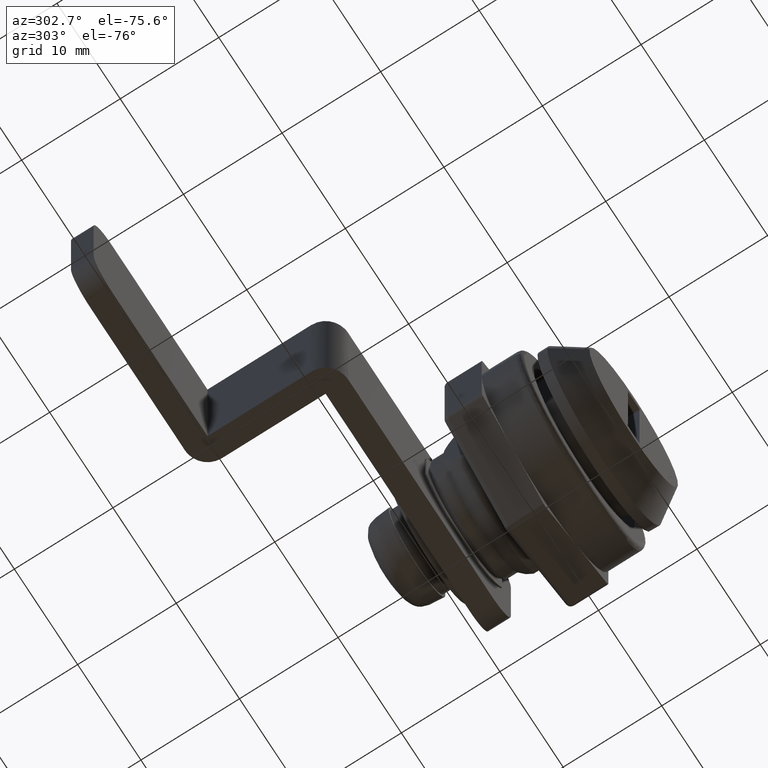
[diagram: clean part render]
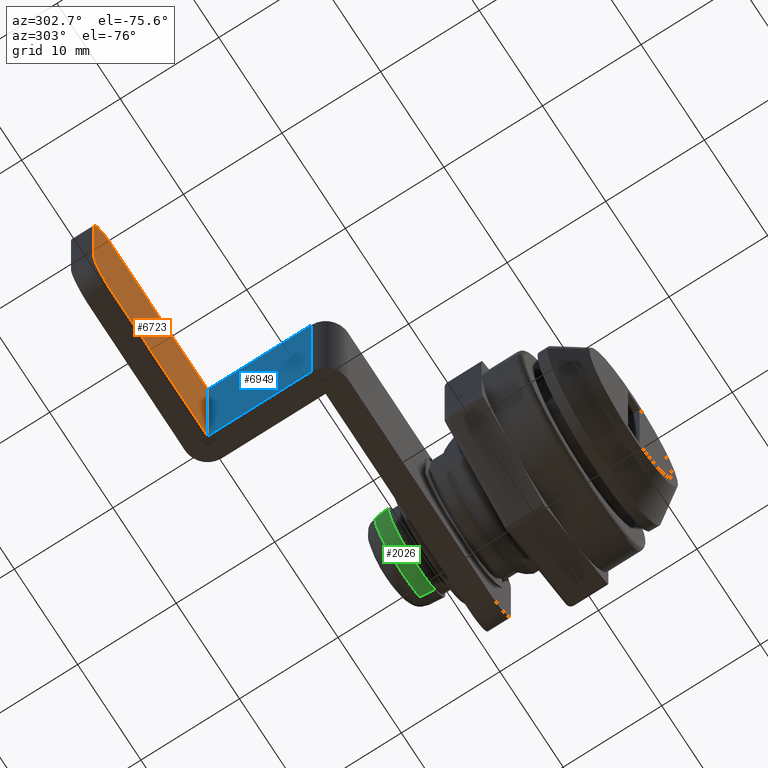
[diagram: same view with three faces highlighted in distinct colors, each labeled with its STEP entity id]
A machine part, auxiliary view with three faces highlighted in distinct colors.
Their STEP definitions:

[orange] entity #6723 — the highlighted face is a freeform B-spline surface patch.
#6484=CARTESIAN_POINT('',(-35.0,30.399999999999999,-8.0));
#6485=VERTEX_POINT('',#6484);
#6491=CARTESIAN_POINT('',(-38.0,30.399999999999999,-5.0));
#6492=VERTEX_POINT('',#6491);
#6493=CARTESIAN_POINT('',(-38.000000000000007,30.399999999999999,-5.0));
#6494=CARTESIAN_POINT('',(-38.0,30.400000000000002,-8.0));
#6495=CARTESIAN_POINT('',(-35.0,30.399999999999999,-8.0));
#6503=(BOUNDED_CURVE()B_SPLINE_CURVE(2,(#6493,#6494,#6495),.UNSPECIFIED.,.F.,.U.)CURVE()GEOMETRIC_REPRESENTATION_ITEM()QUASI_UNIFORM_CURVE()RATIONAL_B_SPLINE_CURVE((1.0,0.707106781186548,1.0))REPRESENTATION_ITEM(''));
#6504=EDGE_CURVE('',#6492,#6485,#6503,.T.);
#6545=CARTESIAN_POINT('',(-38.0,30.399999999999999,5.0));
#6546=VERTEX_POINT('',#6545);
#6552=CARTESIAN_POINT('',(-35.0,30.399999999999999,8.0));
#6553=VERTEX_POINT('',#6552);
#6554=CARTESIAN_POINT('',(-35.0,30.399999999999999,8.0));
#6555=CARTESIAN_POINT('',(-38.0,30.400000000000002,8.0));
#6556=CARTESIAN_POINT('',(-38.000000000000007,30.399999999999999,5.0));
#6564=(BOUNDED_CURVE()B_SPLINE_CURVE(2,(#6554,#6555,#6556),.UNSPECIFIED.,.F.,.U.)CURVE()GEOMETRIC_REPRESENTATION_ITEM()QUASI_UNIFORM_CURVE()RATIONAL_B_SPLINE_CURVE((1.0,0.707106781186548,1.0))REPRESENTATION_ITEM(''));
#6565=EDGE_CURVE('',#6553,#6546,#6564,.T.);
#6690=CARTESIAN_POINT('',(-38.899099965112512,30.399999999999999,8.799199968988896));
#6691=CARTESIAN_POINT('',(-38.899099965112512,30.399999999999999,-8.799200398142338));
#6692=CARTESIAN_POINT('',(-19.100899552089871,30.399999999999999,8.799199968988896));
#6693=CARTESIAN_POINT('',(-19.100899552089871,30.399999999999999,-8.799200398142338));
#6694=B_SPLINE_SURFACE_WITH_KNOTS('',1,1,((#6690,#6692),(#6691,#6693)),.UNSPECIFIED.,.F.,.F.,.U.,(2,2),(2,2),(0.0,17.598400367131230),(0.0,19.798200413022631),.UNSPECIFIED.);
#6695=CARTESIAN_POINT('',(-20.0,30.399999999999999,8.0));
#6696=VERTEX_POINT('',#6695);
#6697=CARTESIAN_POINT('',(-35.0,30.399999999999999,8.0));
#6698=CARTESIAN_POINT('',(-20.0,30.399999999999999,8.0));
#6699=QUASI_UNIFORM_CURVE('',1,(#6697,#6698),.UNSPECIFIED.,.F.,.U.);
#6700=EDGE_CURVE('',#6553,#6696,#6699,.T.);
#6701=ORIENTED_EDGE('',*,*,#6700,.F.);
#6702=ORIENTED_EDGE('',*,*,#6565,.T.);
#6703=CARTESIAN_POINT('',(-38.0,30.399999999999999,-5.0));
#6704=CARTESIAN_POINT('',(-38.0,30.399999999999999,5.0));
#6705=QUASI_UNIFORM_CURVE('',1,(#6703,#6704),.UNSPECIFIED.,.F.,.U.);
#6706=EDGE_CURVE('',#6492,#6546,#6705,.T.);
#6707=ORIENTED_EDGE('',*,*,#6706,.F.);
#6708=ORIENTED_EDGE('',*,*,#6504,.T.);
#6709=CARTESIAN_POINT('',(-20.0,30.399999999999999,-8.0));
#6710=VERTEX_POINT('',#6709);
#6711=CARTESIAN_POINT('',(-35.0,30.399999999999999,-8.0));
#6712=CARTESIAN_POINT('',(-20.0,30.399999999999999,-8.0));
#6713=QUASI_UNIFORM_CURVE('',1,(#6711,#6712),.UNSPECIFIED.,.F.,.U.);
#6714=EDGE_CURVE('',#6485,#6710,#6713,.T.);
#6715=ORIENTED_EDGE('',*,*,#6714,.T.);
#6716=CARTESIAN_POINT('',(-20.0,30.399999999999999,-8.0));
#6717=CARTESIAN_POINT('',(-20.0,30.399999999999999,8.0));
#6718=QUASI_UNIFORM_CURVE('',1,(#6716,#6717),.UNSPECIFIED.,.F.,.U.);
#6719=EDGE_CURVE('',#6710,#6696,#6718,.T.);
#6720=ORIENTED_EDGE('',*,*,#6719,.T.);
#6721=EDGE_LOOP('',(#6701,#6702,#6707,#6708,#6715,#6720));
#6722=FACE_OUTER_BOUND('',#6721,.T.);
#6723=ADVANCED_FACE('',(#6722),#6694,.T.);

[blue] entity #6949 — the highlighted face is a freeform B-spline surface patch.
#6286=CARTESIAN_POINT('',(-20.0,19.899999999999999,-8.0));
#6287=VERTEX_POINT('',#6286);
#6308=CARTESIAN_POINT('',(-20.0,19.899999999999999,8.0));
#6309=VERTEX_POINT('',#6308);
#6323=CARTESIAN_POINT('',(-20.0,19.899999999999999,-8.0));
#6324=CARTESIAN_POINT('',(-20.0,19.899999999999999,8.0));
#6325=QUASI_UNIFORM_CURVE('',1,(#6323,#6324),.UNSPECIFIED.,.F.,.U.);
#6326=EDGE_CURVE('',#6287,#6309,#6325,.T.);
#6695=CARTESIAN_POINT('',(-20.0,30.399999999999999,8.0));
#6696=VERTEX_POINT('',#6695);
#6709=CARTESIAN_POINT('',(-20.0,30.399999999999999,-8.0));
#6710=VERTEX_POINT('',#6709);
#6716=CARTESIAN_POINT('',(-20.0,30.399999999999999,-8.0));
#6717=CARTESIAN_POINT('',(-20.0,30.399999999999999,8.0));
#6718=QUASI_UNIFORM_CURVE('',1,(#6716,#6717),.UNSPECIFIED.,.F.,.U.);
#6719=EDGE_CURVE('',#6710,#6696,#6718,.T.);
#6853=CARTESIAN_POINT('',(-20.0,30.399999999999999,8.0));
#6854=CARTESIAN_POINT('',(-20.0,19.899999999999999,8.0));
#6855=QUASI_UNIFORM_CURVE('',1,(#6853,#6854),.UNSPECIFIED.,.F.,.U.);
#6856=EDGE_CURVE('',#6696,#6309,#6855,.T.);
#6934=CARTESIAN_POINT('',(-20.0,19.375524663598469,8.799199968988896));
#6935=CARTESIAN_POINT('',(-20.0,19.375524663598469,-8.799200398142338));
#6936=CARTESIAN_POINT('',(-20.0,30.924474491505698,8.799199968988896));
#6937=CARTESIAN_POINT('',(-20.0,30.924474491505698,-8.799200398142338));
#6938=B_SPLINE_SURFACE_WITH_KNOTS('',1,1,((#6934,#6936),(#6935,#6937)),.UNSPECIFIED.,.F.,.F.,.U.,(2,2),(2,2),(0.0,17.598400367131230),(0.0,11.548949827907229),.UNSPECIFIED.);
#6939=CARTESIAN_POINT('',(-20.0,30.399999999999999,-8.0));
#6940=CARTESIAN_POINT('',(-20.0,19.899999999999999,-8.0));
#6941=QUASI_UNIFORM_CURVE('',1,(#6939,#6940),.UNSPECIFIED.,.F.,.U.);
#6942=EDGE_CURVE('',#6710,#6287,#6941,.T.);
#6943=ORIENTED_EDGE('',*,*,#6942,.T.);
#6944=ORIENTED_EDGE('',*,*,#6326,.T.);
#6945=ORIENTED_EDGE('',*,*,#6856,.F.);
#6946=ORIENTED_EDGE('',*,*,#6719,.F.);
#6947=EDGE_LOOP('',(#6943,#6944,#6945,#6946));
#6948=FACE_OUTER_BOUND('',#6947,.T.);
#6949=ADVANCED_FACE('',(#6948),#6938,.F.);

[green] entity #2026 — the highlighted face is a freeform B-spline surface patch.
#1833=CARTESIAN_POINT('',(2.719265838699497,23.448848067791531,-3.424931392278604));
#1834=VERTEX_POINT('',#1833);
#1867=CARTESIAN_POINT('',(-3.275306261699376,23.448849286108871,2.897745624199552));
#1868=VERTEX_POINT('',#1867);
#1882=CARTESIAN_POINT('',(-3.370300790556100,22.000000281413019,2.981790126661469));
#1883=VERTEX_POINT('',#1882);
#1884=CARTESIAN_POINT('',(-3.275306261699376,23.448849286108871,2.897745624199552));
#1885=CARTESIAN_POINT('',(-3.370300790556100,22.000000281413019,2.981790126661469));
#1886=QUASI_UNIFORM_CURVE('',1,(#1884,#1885),.UNSPECIFIED.,.F.,.U.);
#1887=EDGE_CURVE('',#1868,#1883,#1886,.T.);
#1904=CARTESIAN_POINT('',(2.798133524112116,21.999999999999812,-3.524265708092974));
#1905=VERTEX_POINT('',#1904);
#1921=CARTESIAN_POINT('',(2.719265838699497,23.448848067791531,-3.424931392278604));
#1922=CARTESIAN_POINT('',(2.798133524112116,21.999999999999812,-3.524265708092974));
#1923=QUASI_UNIFORM_CURVE('',1,(#1921,#1922),.UNSPECIFIED.,.F.,.U.);
#1924=EDGE_CURVE('',#1834,#1905,#1923,.T.);
#1929=CARTESIAN_POINT('',(-3.272931189196947,23.485069269527148,2.895644912235669));
#1930=CARTESIAN_POINT('',(-6.168576101432616,23.485069269527155,-0.377286276961278));
#1931=CARTESIAN_POINT('',(-2.895644912235669,23.485069269527148,-3.272931189196947));
#1932=CARTESIAN_POINT('',(-0.151847631283113,23.485069269527145,-5.700437964475577));
#1933=CARTESIAN_POINT('',(2.717294146561477,23.485069269527152,-3.422448034380830));
#1934=CARTESIAN_POINT('',(-3.372734982409349,21.962873268261820,2.983943849589199));
#1935=CARTESIAN_POINT('',(-6.356678831998549,21.962873268261813,-0.388791132820151));
#1936=CARTESIAN_POINT('',(-2.983943849589199,21.962873268261820,-3.372734982409350));
#1937=CARTESIAN_POINT('',(-0.156478027926464,21.962873268261813,-5.874265429502804));
#1938=CARTESIAN_POINT('',(2.800154508550094,21.962873268261824,-3.526811149936384));
#1946=(BOUNDED_SURFACE()B_SPLINE_SURFACE(2,1,((#1929,#1934),(#1930,#1935),(#1931,#1936),(#1932,#1937),(#1933,#1938)),.UNSPECIFIED.,.F.,.F.,.U.)B_SPLINE_SURFACE_WITH_KNOTS((3,2,3),(2,2),(0.0,7.461229192734671,14.027110882341180),(0.0,1.0),.UNSPECIFIED.)GEOMETRIC_REPRESENTATION_ITEM()RATIONAL_B_SPLINE_SURFACE(((1.0,1.0),(0.707106781186548,0.707106781186548),(1.0,1.0),(0.742253967444162,0.742253967444162),(0.938140952186599,0.938140952186599)))REPRESENTATION_ITEM('')SURFACE());
#1947=CARTESIAN_POINT('',(0.0,23.448848067791651,-4.373163813914754));
#1948=VERTEX_POINT('',#1947);
#1949=CARTESIAN_POINT('',(0.0,23.448848067791651,-4.373163813914754));
#1950=CARTESIAN_POINT('',(1.524961500440937,23.448848067791651,-4.373163813914754));
#1951=CARTESIAN_POINT('',(2.719265838699497,23.448848067791534,-3.424931392278605));
#1959=(BOUNDED_CURVE()B_SPLINE_CURVE(2,(#1949,#1950,#1951),.UNSPECIFIED.,.F.,.U.)B_SPLINE_CURVE_WITH_KNOTS((3,3),(0.0,0.107727136366193),.UNSPECIFIED.)CURVE()GEOMETRIC_REPRESENTATION_ITEM()RATIONAL_B_SPLINE_CURVE((1.0,0.873789809104600,0.856349717772336))REPRESENTATION_ITEM(''));
#1960=EDGE_CURVE('',#1948,#1834,#1959,.T.);
#1961=ORIENTED_EDGE('',*,*,#1960,.T.);
#1962=ORIENTED_EDGE('',*,*,#1924,.T.);
#1963=CARTESIAN_POINT('',(0.0,22.0,-4.500000000000000));
#1964=VERTEX_POINT('',#1963);
#1965=CARTESIAN_POINT('',(0.0,22.0,-4.500000000000000));
#1966=CARTESIAN_POINT('',(1.569190417736221,21.999999999999996,-4.500000000000000));
#1967=CARTESIAN_POINT('',(2.798133524112116,21.999999999999812,-3.524265708092975));
#1975=(BOUNDED_CURVE()B_SPLINE_CURVE(2,(#1965,#1966,#1967),.UNSPECIFIED.,.F.,.U.)B_SPLINE_CURVE_WITH_KNOTS((3,3),(0.0,0.107727136366215),.UNSPECIFIED.)CURVE()GEOMETRIC_REPRESENTATION_ITEM()RATIONAL_B_SPLINE_CURVE((1.0,0.873789809104574,0.856349717772329))REPRESENTATION_ITEM(''));
#1976=EDGE_CURVE('',#1964,#1905,#1975,.T.);
#1977=ORIENTED_EDGE('',*,*,#1976,.F.);
#1978=CARTESIAN_POINT('',(-3.370300790556100,22.000000281413026,2.981790126661470));
#1979=CARTESIAN_POINT('',(-4.500000000000001,22.000000000000004,1.704897376164876));
#1980=CARTESIAN_POINT('',(-4.500000000000000,22.0,-2.878437E-016));
#1981=CARTESIAN_POINT('',(-4.500000000000000,21.999999999999993,-4.500000000000000));
#1982=CARTESIAN_POINT('',(0.0,22.0,-4.500000000000000));
#1990=(BOUNDED_CURVE()B_SPLINE_CURVE(2,(#1978,#1979,#1980,#1981,#1982),.UNSPECIFIED.,.F.,.U.)B_SPLINE_CURVE_WITH_KNOTS((3,2,3),(0.634220118571251,0.750000000000000,1.0),.UNSPECIFIED.)CURVE()GEOMETRIC_REPRESENTATION_ITEM()RATIONAL_B_SPLINE_CURVE((0.854350159370996,0.864355431417976,1.0,0.707106781186547,1.0))REPRESENTATION_ITEM(''));
#1991=EDGE_CURVE('',#1883,#1964,#1990,.T.);
#1992=ORIENTED_EDGE('',*,*,#1991,.F.);
#1993=ORIENTED_EDGE('',*,*,#1887,.F.);
#1994=CARTESIAN_POINT('',(-4.305661120228886,23.448848067827530,-0.765404508124832));
#1995=VERTEX_POINT('',#1994);
#1996=CARTESIAN_POINT('',(-3.275306261699376,23.448849286108871,2.897745624199552));
#1997=CARTESIAN_POINT('',(-4.373163765350681,23.448848808485042,1.656843267802053));
#1998=CARTESIAN_POINT('',(-4.373163798831465,23.448848297840168,-0.000000013344562));
#1999=CARTESIAN_POINT('',(-4.373163806625098,23.448848178972600,-0.385678865442502));
#2000=CARTESIAN_POINT('',(-4.305661120228886,23.448848067827523,-0.765404508124832));
#2008=(BOUNDED_CURVE()B_SPLINE_CURVE(2,(#1996,#1997,#1998,#1999,#2000),.UNSPECIFIED.,.F.,.U.)B_SPLINE_CURVE_WITH_KNOTS((3,2,3),(0.634220126804937,0.750000000000000,0.780081746790781),.UNSPECIFIED.)CURVE()GEOMETRIC_REPRESENTATION_ITEM()RATIONAL_B_SPLINE_CURVE((0.854350160794046,0.864355441064339,1.0,0.964757041419667,0.937995440888707))REPRESENTATION_ITEM(''));
#2009=EDGE_CURVE('',#1868,#1995,#2008,.T.);
#2010=ORIENTED_EDGE('',*,*,#2009,.T.);
#2011=CARTESIAN_POINT('',(-4.305661120228887,23.448848067827523,-0.765404508124832));
#2012=CARTESIAN_POINT('',(-3.664320531684451,23.448848067791651,-4.373163813914755));
#2013=CARTESIAN_POINT('',(0.0,23.448848067791651,-4.373163813914754));
#2021=(BOUNDED_CURVE()B_SPLINE_CURVE(2,(#2011,#2012,#2013),.UNSPECIFIED.,.F.,.U.)B_SPLINE_CURVE_WITH_KNOTS((3,3),(0.780081746790781,1.0),.UNSPECIFIED.)CURVE()GEOMETRIC_REPRESENTATION_ITEM()RATIONAL_B_SPLINE_CURVE((0.937995440888707,0.742349739766880,1.0))REPRESENTATION_ITEM(''));
#2022=EDGE_CURVE('',#1995,#1948,#2021,.T.);
#2023=ORIENTED_EDGE('',*,*,#2022,.T.);
#2024=EDGE_LOOP('',(#1961,#1962,#1977,#1992,#1993,#2010,#2023));
#2025=FACE_OUTER_BOUND('',#2024,.T.);
#2026=ADVANCED_FACE('',(#2025),#1946,.T.);